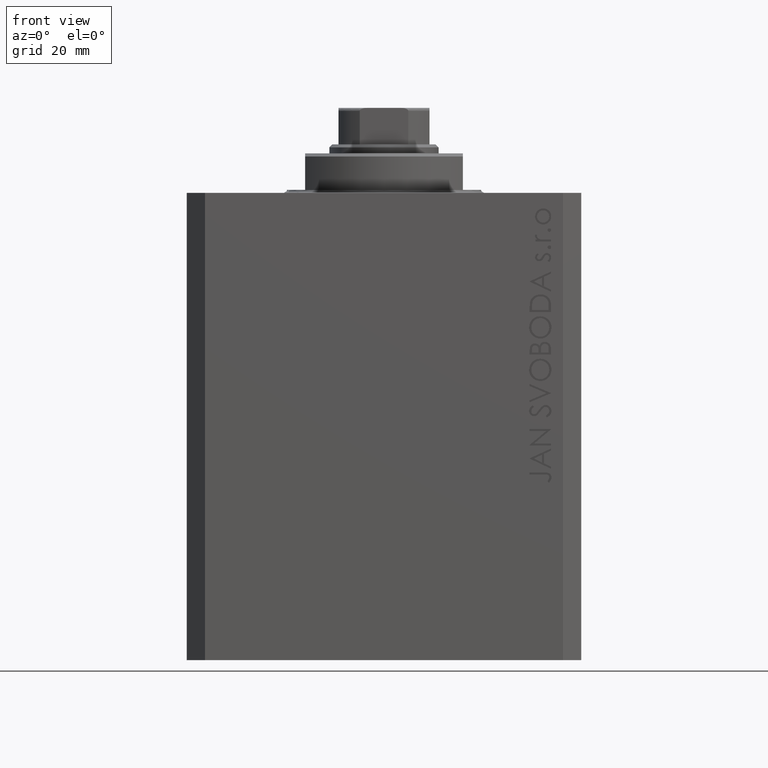
[diagram: clean part render]
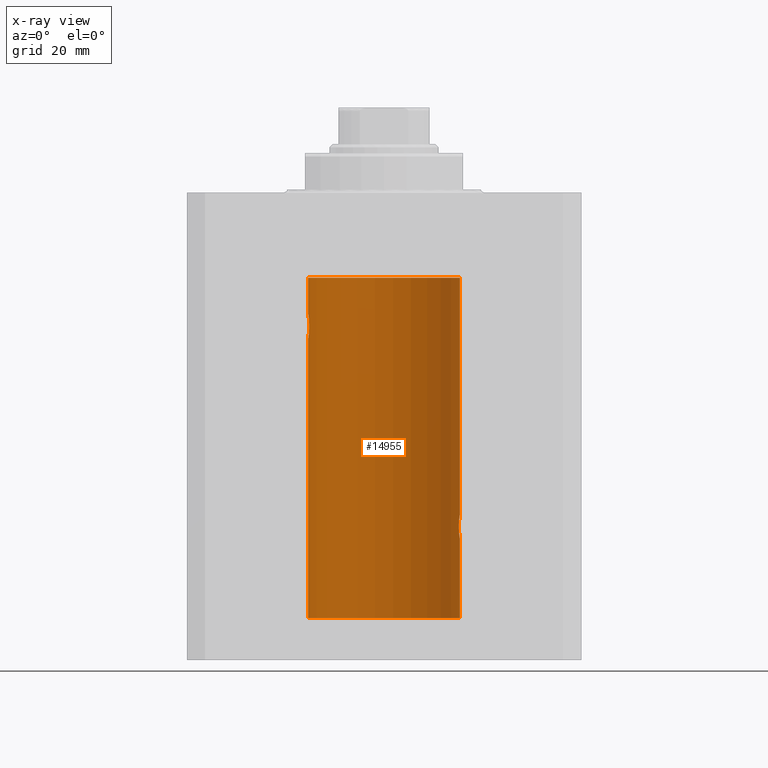
[diagram: x-ray — body ghosted, one internal face saturated and labeled with its STEP entity id]
A machine part, front view, then the same camera in x-ray: the body is ghosted and one INTERNAL B-rep face — a face not visible from any outside direction — is saturated and labeled: STEP entity #14955.
In plain terms, the highlighted cylindrical surface (partial cylindrical patch) has radius 12.5 mm, axis along (0, 0, 1).
Its self-contained STEP definition (entity closure, byte-faithful):
#394 = DIRECTION ( 'NONE',  ( -0.000000000000000000, -0.000000000000000000, 1.000000000000000000 ) ) ;
#490 = CARTESIAN_POINT ( 'NONE',  ( -12.48990118705761532, 0.5184196815546056047, -20.06395648222637007 ) ) ;
#1155 = CARTESIAN_POINT ( 'NONE',  ( -12.46909283808506430, 0.8868029758979402155, -23.79742491916155345 ) ) ;
#1490 = DIRECTION ( 'NONE',  ( 1.000000000000000000, 0.000000000000000000, 0.000000000000000000 ) ) ;
#1536 = CARTESIAN_POINT ( 'NONE',  ( 12.44079117518645461, 1.220047488436375227, -53.40989676335082237 ) ) ;
#1571 = CARTESIAN_POINT ( 'NONE',  ( 12.50000000000000000, -3.070791583031755813E-15, -57.00000000000000000 ) ) ;
#2196 = CARTESIAN_POINT ( 'NONE',  ( 12.33896267925302581, 2.000000000000254463, -55.00000000000000000 ) ) ;
#2966 = CARTESIAN_POINT ( 'NONE',  ( -12.37922086519035325, 1.734998657226764829, -23.00335814299181436 ) ) ;
#3092 = LINE ( 'NONE', #16827, #40597 ) ;
#3181 = CARTESIAN_POINT ( 'NONE',  ( -12.44082361696003503, 1.219754986802281449, -20.40963319990594016 ) ) ;
#3622 = CARTESIAN_POINT ( 'NONE',  ( -12.34922241902463114, 1.935814255713574239, -22.51937350851555308 ) ) ;
#3833 = CARTESIAN_POINT ( 'NONE',  ( -12.46021263690096958, 1.002494658017156981, -20.26446744561863156 ) ) ;
#3966 = CARTESIAN_POINT ( 'NONE',  ( 12.50000000000000000, 0.000000000000000000, -70.09999999999999432 ) ) ;
#5040 = CARTESIAN_POINT ( 'NONE',  ( -12.50000000000000000, 1.530808426276628993E-15, -23.99999999999999645 ) ) ;
#5330 = CARTESIAN_POINT ( 'NONE',  ( 12.37021546997940113, 1.797317011867410219, -54.11295119741077286 ) ) ;
#5548 = VERTEX_POINT ( 'NONE', #19614 ) ;
#5800 = DIRECTION ( 'NONE',  ( -0.000000000000000000, -0.000000000000000000, 1.000000000000000000 ) ) ;
#5825 = EDGE_CURVE ( 'NONE', #31836, #14678, #40314, .T. ) ;
#6024 = CARTESIAN_POINT ( 'NONE',  ( 12.37760587642916477, 1.747868572747724114, -56.00639653169000098 ) ) ;
#6916 = EDGE_CURVE ( 'NONE', #38604, #10939, #44005, .T. ) ;
#7001 = CARTESIAN_POINT ( 'NONE',  ( -12.34781876294798053, 1.947190906025043633, -21.47436412829509678 ) ) ;
#7440 = CARTESIAN_POINT ( 'NONE',  ( -12.37018026341338839, 1.797558627508998086, -22.88656313533016373 ) ) ;
#7895 = EDGE_CURVE ( 'NONE', #15520, #5548, #8108, .T. ) ;
#7904 = CARTESIAN_POINT ( 'NONE',  ( -12.49788564268284041, 0.2633501011236127343, -23.98690384766255335 ) ) ;
#7905 = CYLINDRICAL_SURFACE ( 'NONE', #34066, 12.50000000000000000 ) ;
#8108 = CIRCLE ( 'NONE', #33220, 12.50000000000000000 ) ;
#8496 = CARTESIAN_POINT ( 'NONE',  ( 12.33896267925302226, 2.000000000000254463, -54.86934705949917657 ) ) ;
#8542 = CARTESIAN_POINT ( 'NONE',  ( 12.46901623405144299, 0.8878913781257963267, -56.79689651717551158 ) ) ;
#9201 = CARTESIAN_POINT ( 'NONE',  ( 12.44079900692650931, 1.220007525301745277, -56.59017579083666760 ) ) ;
#9376 = ORIENTED_EDGE ( 'NONE', *, *, #43115, .T. ) ;
#9386 = CARTESIAN_POINT ( 'NONE',  ( 12.34110728646152211, 1.986893050944461780, -54.73661347764981144 ) ) ;
#10392 = CARTESIAN_POINT ( 'NONE',  ( -12.46903010196599304, 0.8876934327478135378, -20.20300788371381984 ) ) ;
#10477 = VERTEX_POINT ( 'NONE', #17029 ) ;
#10939 = VERTEX_POINT ( 'NONE', #30664 ) ;
#11868 = CARTESIAN_POINT ( 'NONE',  ( 12.46011632531799407, 1.003644408234889429, -53.26516799687669135 ) ) ;
#12122 = CARTESIAN_POINT ( 'NONE',  ( 12.50000000000000000, 0.000000000000000000, -70.09999999999999432 ) ) ;
#12181 = ORIENTED_EDGE ( 'NONE', *, *, #6916, .F. ) ;
#12319 = CARTESIAN_POINT ( 'NONE',  ( 12.48983962833819028, 0.5199974825204922713, -53.06435160808016605 ) ) ;
#13321 = CARTESIAN_POINT ( 'NONE',  ( -12.43019346654084956, 1.322451657002078340, -20.49398366327208620 ) ) ;
#13547 = CARTESIAN_POINT ( 'NONE',  ( -12.43034574091277911, 1.321095788880539024, -23.50733550364322255 ) ) ;
#14046 = DIRECTION ( 'NONE',  ( 1.000000000000000000, 0.000000000000000000, 0.000000000000000000 ) ) ;
#14264 = VECTOR ( 'NONE', #394, 1000.000000000000000 ) ;
#14601 = AXIS2_PLACEMENT_3D ( 'NONE', #32935, #25766, #1490 ) ;
#14678 = VERTEX_POINT ( 'NONE', #19306 ) ;
#14955 = ADVANCED_FACE ( 'NONE', ( #22069 ), #7905, .F. ) ;
#15022 = ORIENTED_EDGE ( 'NONE', *, *, #7895, .T. ) ;
#15060 = DIRECTION ( 'NONE',  ( 0.000000000000000000, 0.000000000000000000, 1.000000000000000000 ) ) ;
#15200 = EDGE_CURVE ( 'NONE', #10477, #5548, #37978, .T. ) ;
#15520 = VERTEX_POINT ( 'NONE', #32291 ) ;
#15913 = ORIENTED_EDGE ( 'NONE', *, *, #15200, .F. ) ;
#16398 = CARTESIAN_POINT ( 'NONE',  ( 12.33896267925302581, 2.000000000000254463, -55.00000000000000000 ) ) ;
#16612 = CARTESIAN_POINT ( 'NONE',  ( 12.39869754437268767, 1.598954131913735033, -56.22932152813014284 ) ) ;
#16827 = CARTESIAN_POINT ( 'NONE',  ( -12.50000000000000000, 1.530808498934191521E-15, -70.09999999999999432 ) ) ;
#16918 = CARTESIAN_POINT ( 'NONE',  ( -12.39873273758732175, 1.598680238462371062, -20.77033506126851137 ) ) ;
#17029 = CARTESIAN_POINT ( 'NONE',  ( -12.50000000000000000, 1.867773856434666690E-17, -20.00000000000000000 ) ) ;
#17576 = CARTESIAN_POINT ( 'NONE',  ( -12.37764291807175354, 1.747608771958140794, -20.99316879552500481 ) ) ;
#17804 = CARTESIAN_POINT ( 'NONE',  ( -12.46009879577771606, 1.003863686549169465, -23.73470742397611843 ) ) ;
#18230 = B_SPLINE_CURVE_WITH_KNOTS ( 'NONE', 3,
 ( #24542, #31043, #20507, #490, #41159, #10392, #3833, #3181, #13321, #16918, #17576, #7001, #31271, #20735, #34411, #3622, #38242, #7440, #2966, #30608, #44331, #13547, #40949, #17804, #1155, #38472, #28587, #7904, #42733, #42286 ),
 .UNSPECIFIED., .F., .F.,
 ( 4, 2, 2, 2, 2, 2, 2, 2, 2, 2, 2, 2, 2, 2, 4 ),
 ( 1.814683826656258666E-20, 0.0003914362731607577369, 0.0007828725463215154739, 0.001174308819482273265, 0.001565745092643030948, 0.002348617638964546530, 0.003131490185286061895, 0.003522926458446825216, 0.003914362731607588103, 0.004305799004768351423, 0.004697235277929114744, 0.005088671551089878065, 0.005480107824250641385, 0.005871544097411404706, 0.006262980370572168026 ),
 .UNSPECIFIED. ) ;
#18842 = CARTESIAN_POINT ( 'NONE',  ( 12.50000000000000000, -7.266276684081261841E-23, -53.00000000000000000 ) ) ;
#19252 = CARTESIAN_POINT ( 'NONE',  ( 12.50000000000000000, 0.000000000000000000, -70.09999999999999432 ) ) ;
#19294 = CARTESIAN_POINT ( 'NONE',  ( 12.48395395845270528, 0.6446573166014708534, -53.10222124213520090 ) ) ;
#19306 = CARTESIAN_POINT ( 'NONE',  ( 12.50000000000000000, -7.266276684081261841E-23, -53.00000000000000000 ) ) ;
#19428 = EDGE_CURVE ( 'NONE', #14678, #15520, #36609, .T. ) ;
#19528 = ORIENTED_EDGE ( 'NONE', *, *, #41424, .T. ) ;
#19614 = CARTESIAN_POINT ( 'NONE',  ( -12.50000000000000000, 1.530808498934191521E-15, -13.99999999999999822 ) ) ;
#20254 = ORIENTED_EDGE ( 'NONE', *, *, #5825, .T. ) ;
#20507 = CARTESIAN_POINT ( 'NONE',  ( -12.49789934882883458, 0.2624928479599910047, -20.01301208516349917 ) ) ;
#20724 = VECTOR ( 'NONE', #5800, 1000.000000000000000 ) ;
#20735 = CARTESIAN_POINT ( 'NONE',  ( -12.33895470450623044, 2.000049200055401766, -22.12992629360264729 ) ) ;
#20738 = VERTEX_POINT ( 'NONE', #5040 ) ;
#22069 = FACE_OUTER_BOUND ( 'NONE', #43963, .T. ) ;
#22263 = CARTESIAN_POINT ( 'NONE',  ( 12.46019522898365395, 1.002712894177340885, -56.73540896027601121 ) ) ;
#22667 = CARTESIAN_POINT ( 'NONE',  ( 12.46910683544638232, 0.8866026273585057016, -53.20247863689694157 ) ) ;
#23106 = CARTESIAN_POINT ( 'NONE',  ( 12.35520276972935250, 1.897773362058245761, -54.35528278634336630 ) ) ;
#24052 = B_SPLINE_CURVE_WITH_KNOTS ( 'NONE', 3,
 ( #1571, #25627, #39324, #26291, #39982, #8542, #22263, #9201, #26724, #16612, #6024, #33672, #44244, #16398 ),
 .UNSPECIFIED., .F., .F.,
 ( 4, 2, 2, 2, 2, 2, 4 ),
 ( 4.122900576430715099E-18, 0.0003915305205218091544, 0.0007830610410436140804, 0.001174591561565418952, 0.001566122082087223824, 0.002349183123130847879, 0.003132244164174471934 ),
 .UNSPECIFIED. ) ;
#24055 = CARTESIAN_POINT ( 'NONE',  ( -12.50000000000000000, 1.530808498934191521E-15, -70.09999999999999432 ) ) ;
#24297 = CARTESIAN_POINT ( 'NONE',  ( 12.50000000000000000, -3.070791583031755813E-15, -57.00000000000000000 ) ) ;
#24542 = CARTESIAN_POINT ( 'NONE',  ( -12.50000000000000000, 1.867773856434666690E-17, -20.00000000000000000 ) ) ;
#25627 = CARTESIAN_POINT ( 'NONE',  ( 12.50000000000000178, 0.1324055009716459952, -56.99999999999999289 ) ) ;
#25766 = DIRECTION ( 'NONE',  ( 0.000000000000000000, 0.000000000000000000, 1.000000000000000000 ) ) ;
#25835 = DIRECTION ( 'NONE',  ( 1.000000000000000000, 0.000000000000000000, 0.000000000000000000 ) ) ;
#26291 = CARTESIAN_POINT ( 'NONE',  ( 12.48989642018887203, 0.5185418732824298438, -56.93601292187604912 ) ) ;
#26724 = CARTESIAN_POINT ( 'NONE',  ( 12.43016561391612029, 1.322713721413891319, -56.50578877836698410 ) ) ;
#27867 = DIRECTION ( 'NONE',  ( -0.000000000000000000, -0.000000000000000000, 1.000000000000000000 ) ) ;
#28587 = CARTESIAN_POINT ( 'NONE',  ( -12.48983485452574982, 0.5201193324741355539, -23.93561774521849372 ) ) ;
#29406 = CARTESIAN_POINT ( 'NONE',  ( 12.40916530024876963, 1.507117913375724649, -53.67865955049006033 ) ) ;
#30608 = CARTESIAN_POINT ( 'NONE',  ( -12.39864157855465088, 1.590288205413973532, -23.21980790594580313 ) ) ;
#30664 = CARTESIAN_POINT ( 'NONE',  ( -12.50000000000000000, 1.530808498934191521E-15, -70.09999999999999432 ) ) ;
#31043 = CARTESIAN_POINT ( 'NONE',  ( -12.50000000000000000, 0.1323736289504353625, -20.00000000000000000 ) ) ;
#31171 = LINE ( 'NONE', #3966, #14264 ) ;
#31271 = CARTESIAN_POINT ( 'NONE',  ( -12.33897869807161385, 1.999901172190678089, -21.73788193668374547 ) ) ;
#31836 = VERTEX_POINT ( 'NONE', #43247 ) ;
#31884 = CARTESIAN_POINT ( 'NONE',  ( 0.000000000000000000, 0.000000000000000000, -13.99999999999999822 ) ) ;
#32291 = CARTESIAN_POINT ( 'NONE',  ( 12.50000000000000000, 0.000000000000000000, -13.99999999999999822 ) ) ;
#32322 = CARTESIAN_POINT ( 'NONE',  ( 12.39867611624532806, 1.590019252152835794, -53.77984495929610631 ) ) ;
#32935 = CARTESIAN_POINT ( 'NONE',  ( 0.000000000000000000, 0.000000000000000000, -70.09999999999999432 ) ) ;
#33220 = AXIS2_PLACEMENT_3D ( 'NONE', #31884, #15060, #25835 ) ;
#33672 = CARTESIAN_POINT ( 'NONE',  ( 12.34779119491631150, 1.947363444907014518, -55.52502775168252214 ) ) ;
#33979 = VERTEX_POINT ( 'NONE', #24297 ) ;
#34066 = AXIS2_PLACEMENT_3D ( 'NONE', #35984, #42952, #14046 ) ;
#34186 = EDGE_CURVE ( 'NONE', #33979, #31836, #24052, .T. ) ;
#34255 = EDGE_CURVE ( 'NONE', #10939, #20738, #3092, .T. ) ;
#34391 = ORIENTED_EDGE ( 'NONE', *, *, #34186, .T. ) ;
#34411 = CARTESIAN_POINT ( 'NONE',  ( -12.34109209020652465, 1.986986967296539897, -22.26269462454597914 ) ) ;
#35725 = ORIENTED_EDGE ( 'NONE', *, *, #34255, .F. ) ;
#35984 = CARTESIAN_POINT ( 'NONE',  ( 0.000000000000000000, 0.000000000000000000, -70.09999999999999432 ) ) ;
#36107 = ORIENTED_EDGE ( 'NONE', *, *, #19428, .T. ) ;
#36361 = CARTESIAN_POINT ( 'NONE',  ( 12.50000000000000000, 0.1306079576516677443, -52.99999999999999289 ) ) ;
#36609 = LINE ( 'NONE', #12122, #20724 ) ;
#36795 = CARTESIAN_POINT ( 'NONE',  ( 12.34924836377099844, 1.935649219704940194, -54.48002062127162759 ) ) ;
#37978 = LINE ( 'NONE', #24055, #39839 ) ;
#38242 = CARTESIAN_POINT ( 'NONE',  ( -12.35517291625592051, 1.897967064543089721, -22.64415233770293412 ) ) ;
#38472 = CARTESIAN_POINT ( 'NONE',  ( -12.48394649977302073, 0.6448065707253024526, -23.89773031393659153 ) ) ;
#38604 = VERTEX_POINT ( 'NONE', #19252 ) ;
#39324 = CARTESIAN_POINT ( 'NONE',  ( 12.49789833780794268, 0.2625555164371063399, -56.98698170822144959 ) ) ;
#39515 = CARTESIAN_POINT ( 'NONE',  ( 12.43037348241797879, 1.320834183883846435, -53.49243837704294435 ) ) ;
#39839 = VECTOR ( 'NONE', #27867, 1000.000000000000000 ) ;
#39982 = CARTESIAN_POINT ( 'NONE',  ( 12.48390005916862933, 0.6457215011736597843, -56.89742771554266199 ) ) ;
#40314 = B_SPLINE_CURVE_WITH_KNOTS ( 'NONE', 3,
 ( #2196, #8496, #9386, #36795, #23106, #5330, #43318, #32322, #29406, #39515, #1536, #11868, #22667, #19294, #12319, #42887, #36361, #18842 ),
 .UNSPECIFIED., .F., .F.,
 ( 4, 2, 2, 2, 2, 2, 2, 2, 4 ),
 ( 0.003132244164174471934, 0.003523586189974247697, 0.003914928215774023459, 0.004306270241573798355, 0.004697612267373574985, 0.005088954293173349880, 0.005480296318973125642, 0.005871638344772901405, 0.006262980370572677168 ),
 .UNSPECIFIED. ) ;
#40597 = VECTOR ( 'NONE', #40862, 1000.000000000000000 ) ;
#40862 = DIRECTION ( 'NONE',  ( -0.000000000000000000, -0.000000000000000000, 1.000000000000000000 ) ) ;
#40949 = CARTESIAN_POINT ( 'NONE',  ( -12.44076681548080288, 1.220297236145718944, -23.58991408680628155 ) ) ;
#41159 = CARTESIAN_POINT ( 'NONE',  ( -12.48390768591463207, 0.6455696738844916016, -20.10252270298193977 ) ) ;
#41424 = EDGE_CURVE ( 'NONE', #38604, #33979, #31171, .T. ) ;
#42286 = CARTESIAN_POINT ( 'NONE',  ( -12.50000000000000000, 1.530808426276628993E-15, -23.99999999999999645 ) ) ;
#42733 = CARTESIAN_POINT ( 'NONE',  ( -12.50000000000000533, 0.1306394121199390135, -24.00000000000000711 ) ) ;
#42887 = CARTESIAN_POINT ( 'NONE',  ( 12.49788668346400122, 0.2632864803365719264, -53.01308975838332316 ) ) ;
#42952 = DIRECTION ( 'NONE',  ( -0.000000000000000000, -0.000000000000000000, 1.000000000000000000 ) ) ;
#43115 = EDGE_CURVE ( 'NONE', #10477, #20738, #18230, .T. ) ;
#43247 = CARTESIAN_POINT ( 'NONE',  ( 12.33896267925302581, 2.000000000000254463, -55.00000000000000000 ) ) ;
#43318 = CARTESIAN_POINT ( 'NONE',  ( 12.37925647381943506, 1.734744884174225898, -53.99620732598648942 ) ) ;
#43963 = EDGE_LOOP ( 'NONE', ( #35725, #12181, #19528, #34391, #20254, #36107, #15022, #15913, #9376 ) ) ;
#44005 = CIRCLE ( 'NONE', #14601, 12.50000000000000000 ) ;
#44244 = CARTESIAN_POINT ( 'NONE',  ( 12.33896267925302581, 2.000000000000254907, -55.26143174220785426 ) ) ;
#44331 = CARTESIAN_POINT ( 'NONE',  ( -12.40913174964213184, 1.507394620545641439, -23.32102833500698225 ) ) ;